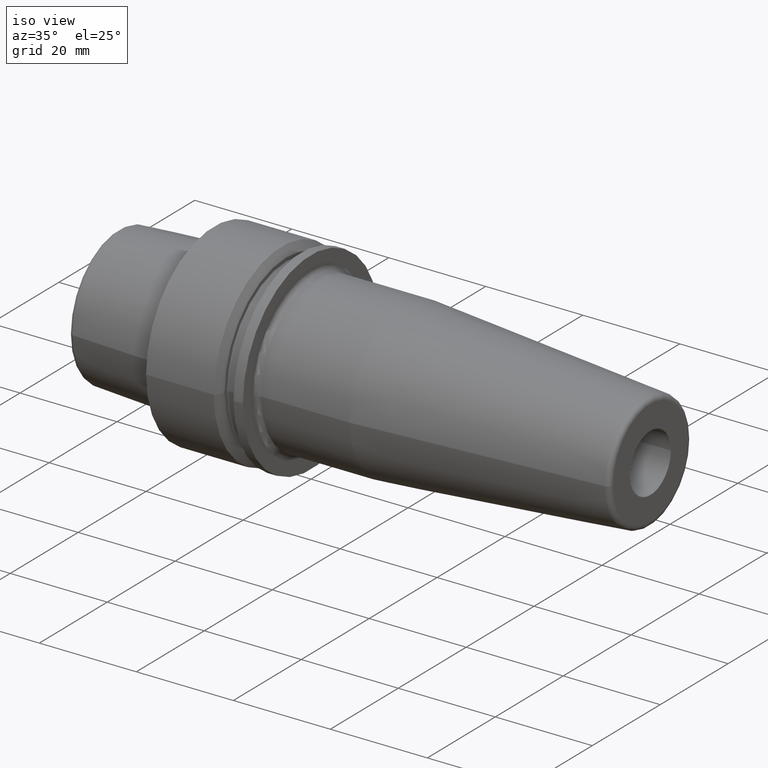
[diagram: clean part render]
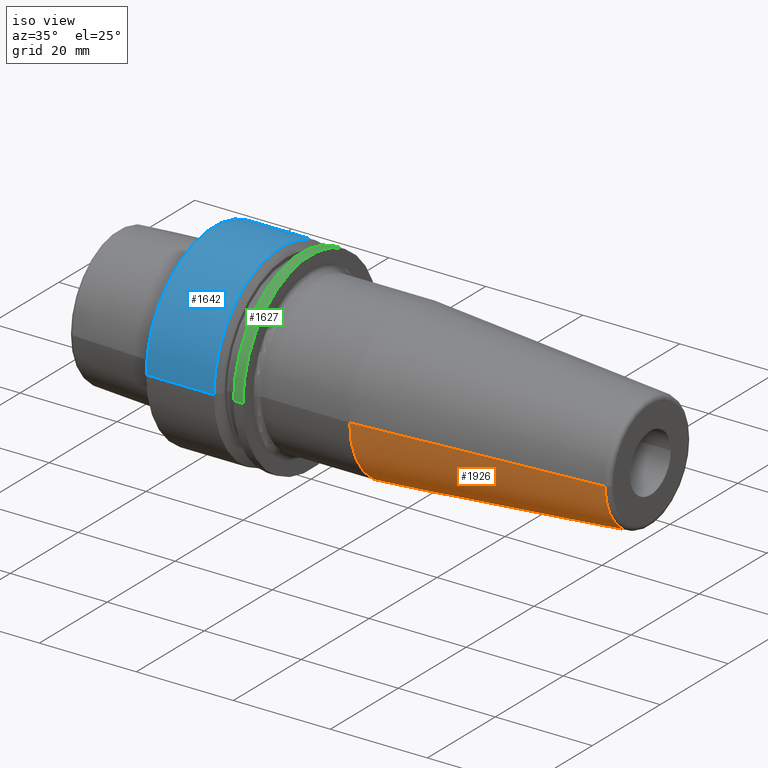
[diagram: same view with three faces highlighted in distinct colors, each labeled with its STEP entity id]
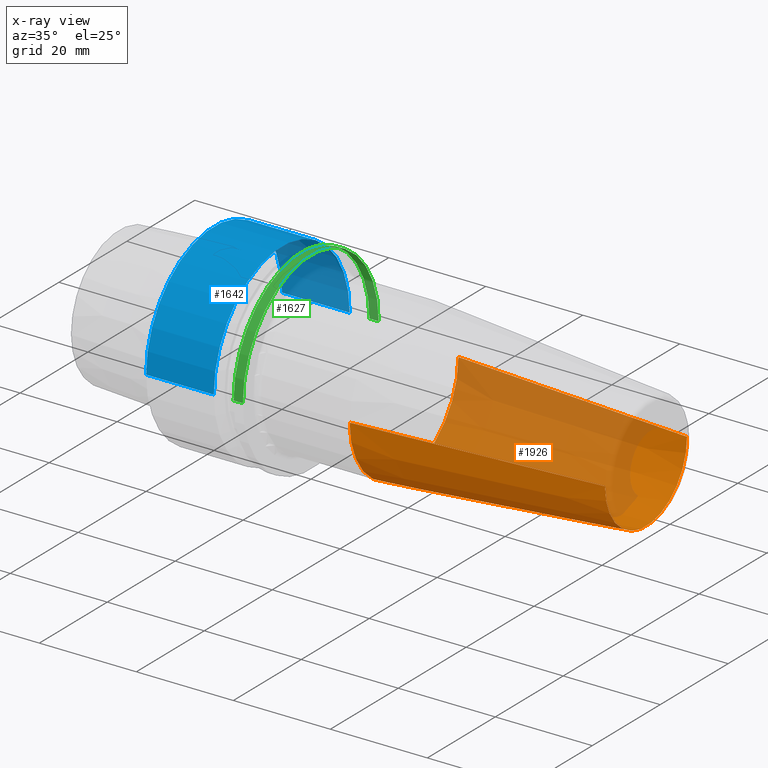
[diagram: x-ray of the same camera — body ghosted, the three highlighted faces saturated]
A machine part, iso view with three faces highlighted in distinct colors.
The next image is the same camera in x-ray (body ghosted, the three faces saturated) — at least one of them is partly hidden behind the body in this view.
Their STEP definitions:

[orange] entity #1926 — the highlighted conical surface has half-angle 4.5 deg.
#661=CARTESIAN_POINT('',(3.917518105530E1,0.E0,0.E0));
#662=DIRECTION('',(-1.E0,0.E0,0.E0));
#663=DIRECTION('',(0.E0,1.E0,0.E0));
#664=AXIS2_PLACEMENT_3D('',#661,#662,#663);
#670=CARTESIAN_POINT('',(8.907845909573E1,0.E0,0.E0));
#671=DIRECTION('',(-1.E0,0.E0,0.E0));
#672=DIRECTION('',(0.E0,1.E0,0.E0));
#673=AXIS2_PLACEMENT_3D('',#670,#671,#672);
#675=DIRECTION('',(-9.969173337331E-1,7.845909572785E-2,1.087755894032E-14));
#676=VECTOR('',#675,5.005758888107E1);
#677=CARTESIAN_POINT('',(8.907845909573E1,1.207252684207E1,
-5.425449385856E-13));
#678=LINE('',#677,#676);
#679=DIRECTION('',(-9.969173337331E-1,-7.845909572785E-2,-1.081666852093E-14));
#680=VECTOR('',#679,5.005758888107E1);
#681=CARTESIAN_POINT('',(8.907845909573E1,-1.207252684207E1,
5.394969110049E-13));
#682=LINE('',#681,#680);
#888=CARTESIAN_POINT('',(3.917518105530E1,1.6E1,0.E0));
#889=CARTESIAN_POINT('',(3.917518105530E1,-1.6E1,0.E0));
#890=VERTEX_POINT('',#888);
#891=VERTEX_POINT('',#889);
#900=CARTESIAN_POINT('',(8.907845909573E1,1.207252684207E1,0.E0));
#901=CARTESIAN_POINT('',(8.907845909573E1,-1.207252684207E1,0.E0));
#902=VERTEX_POINT('',#900);
#903=VERTEX_POINT('',#901);
#1912=CARTESIAN_POINT('',(6.412682007551E1,0.E0,0.E0));
#1913=DIRECTION('',(-1.E0,0.E0,0.E0));
#1914=DIRECTION('',(0.E0,1.E0,0.E0));
#1915=AXIS2_PLACEMENT_3D('',#1912,#1913,#1914);
#1916=CONICAL_SURFACE('',#1915,1.403626342104E1,4.5E0);
#1918=ORIENTED_EDGE('',*,*,#1917,.F.);
#1920=ORIENTED_EDGE('',*,*,#1919,.T.);
#1921=ORIENTED_EDGE('',*,*,#1906,.T.);
#1923=ORIENTED_EDGE('',*,*,#1922,.F.);
#1924=EDGE_LOOP('',(#1918,#1920,#1921,#1923));
#1925=FACE_OUTER_BOUND('',#1924,.F.);
#1926=ADVANCED_FACE('',(#1925),#1916,.T.);
#665=CIRCLE('',#664,1.6E1);
#674=CIRCLE('',#673,1.207252684207E1);
#1906=EDGE_CURVE('',#890,#891,#665,.T.);
#1917=EDGE_CURVE('',#902,#903,#674,.T.);
#1919=EDGE_CURVE('',#902,#890,#678,.T.);
#1922=EDGE_CURVE('',#903,#891,#682,.T.);

[blue] entity #1642 — the highlighted cylindrical surface (partial cylindrical patch) has radius 20 mm, axis along (1, 0, 0).
#452=CARTESIAN_POINT('',(-1.065814103640E-14,0.E0,0.E0));
#453=DIRECTION('',(1.E0,0.E0,0.E0));
#454=DIRECTION('',(0.E0,1.E0,0.E0));
#455=AXIS2_PLACEMENT_3D('',#452,#453,#454);
#482=CARTESIAN_POINT('',(1.396484030111E1,0.E0,0.E0));
#483=DIRECTION('',(1.E0,0.E0,0.E0));
#484=DIRECTION('',(0.E0,1.E0,0.E0));
#485=AXIS2_PLACEMENT_3D('',#482,#483,#484);
#614=DIRECTION('',(-1.E0,0.E0,0.E0));
#615=VECTOR('',#614,1.396484030111E1);
#616=CARTESIAN_POINT('',(1.396484030111E1,2.E1,0.E0));
#617=LINE('',#616,#615);
#618=DIRECTION('',(-1.E0,0.E0,0.E0));
#619=VECTOR('',#618,1.396484030111E1);
#620=CARTESIAN_POINT('',(1.396484030111E1,-2.E1,0.E0));
#621=LINE('',#620,#619);
#802=CARTESIAN_POINT('',(1.396484030111E1,2.E1,0.E0));
#803=VERTEX_POINT('',#802);
#806=CARTESIAN_POINT('',(1.396484030111E1,-2.E1,0.E0));
#807=VERTEX_POINT('',#806);
#812=CARTESIAN_POINT('',(-1.065814103640E-14,2.E1,0.E0));
#813=CARTESIAN_POINT('',(-1.065814103640E-14,-2.E1,0.E0));
#814=VERTEX_POINT('',#812);
#815=VERTEX_POINT('',#813);
#1628=CARTESIAN_POINT('',(-2.18925E1,0.E0,0.E0));
#1629=DIRECTION('',(1.E0,0.E0,0.E0));
#1630=DIRECTION('',(0.E0,-1.E0,0.E0));
#1631=AXIS2_PLACEMENT_3D('',#1628,#1629,#1630);
#1632=CYLINDRICAL_SURFACE('',#1631,2.E1);
#1634=ORIENTED_EDGE('',*,*,#1633,.T.);
#1636=ORIENTED_EDGE('',*,*,#1635,.T.);
#1637=ORIENTED_EDGE('',*,*,#1601,.F.);
#1639=ORIENTED_EDGE('',*,*,#1638,.F.);
#1640=EDGE_LOOP('',(#1634,#1636,#1637,#1639));
#1641=FACE_OUTER_BOUND('',#1640,.F.);
#1642=ADVANCED_FACE('',(#1641),#1632,.T.);
#456=CIRCLE('',#455,2.E1);
#486=CIRCLE('',#485,2.E1);
#1601=EDGE_CURVE('',#814,#815,#456,.T.);
#1633=EDGE_CURVE('',#803,#807,#486,.T.);
#1635=EDGE_CURVE('',#807,#815,#621,.T.);
#1638=EDGE_CURVE('',#803,#814,#617,.T.);

[green] entity #1627 — the highlighted cylindrical surface (partial cylindrical patch) has radius 20 mm, axis along (1, 0, 0).
#472=CARTESIAN_POINT('',(1.803515969889E1,0.E0,0.E0));
#473=DIRECTION('',(1.E0,0.E0,0.E0));
#474=DIRECTION('',(0.E0,1.E0,0.E0));
#475=AXIS2_PLACEMENT_3D('',#472,#473,#474);
#477=CARTESIAN_POINT('',(1.995E1,0.E0,0.E0));
#478=DIRECTION('',(1.E0,0.E0,0.E0));
#479=DIRECTION('',(0.E0,1.E0,0.E0));
#480=AXIS2_PLACEMENT_3D('',#477,#478,#479);
#596=DIRECTION('',(-1.E0,0.E0,0.E0));
#597=VECTOR('',#596,1.914840301107E0);
#598=CARTESIAN_POINT('',(1.995E1,-2.E1,0.E0));
#599=LINE('',#598,#597);
#605=DIRECTION('',(-1.E0,0.E0,0.E0));
#606=VECTOR('',#605,1.914840301107E0);
#607=CARTESIAN_POINT('',(1.995E1,2.E1,0.E0));
#608=LINE('',#607,#606);
#800=CARTESIAN_POINT('',(1.803515969889E1,2.E1,0.E0));
#801=VERTEX_POINT('',#800);
#804=CARTESIAN_POINT('',(1.803515969889E1,-2.E1,0.E0));
#805=VERTEX_POINT('',#804);
#808=CARTESIAN_POINT('',(1.995E1,2.E1,0.E0));
#809=CARTESIAN_POINT('',(1.995E1,-2.E1,0.E0));
#810=VERTEX_POINT('',#808);
#811=VERTEX_POINT('',#809);
#1612=CARTESIAN_POINT('',(-2.18925E1,0.E0,0.E0));
#1613=DIRECTION('',(1.E0,0.E0,0.E0));
#1614=DIRECTION('',(0.E0,-1.E0,0.E0));
#1615=AXIS2_PLACEMENT_3D('',#1612,#1613,#1614);
#1616=CYLINDRICAL_SURFACE('',#1615,2.E1);
#1618=ORIENTED_EDGE('',*,*,#1617,.F.);
#1620=ORIENTED_EDGE('',*,*,#1619,.F.);
#1622=ORIENTED_EDGE('',*,*,#1621,.T.);
#1624=ORIENTED_EDGE('',*,*,#1623,.T.);
#1625=EDGE_LOOP('',(#1618,#1620,#1622,#1624));
#1626=FACE_OUTER_BOUND('',#1625,.F.);
#1627=ADVANCED_FACE('',(#1626),#1616,.T.);
#476=CIRCLE('',#475,2.E1);
#481=CIRCLE('',#480,2.E1);
#1617=EDGE_CURVE('',#801,#805,#476,.T.);
#1619=EDGE_CURVE('',#810,#801,#608,.T.);
#1621=EDGE_CURVE('',#810,#811,#481,.T.);
#1623=EDGE_CURVE('',#811,#805,#599,.T.);